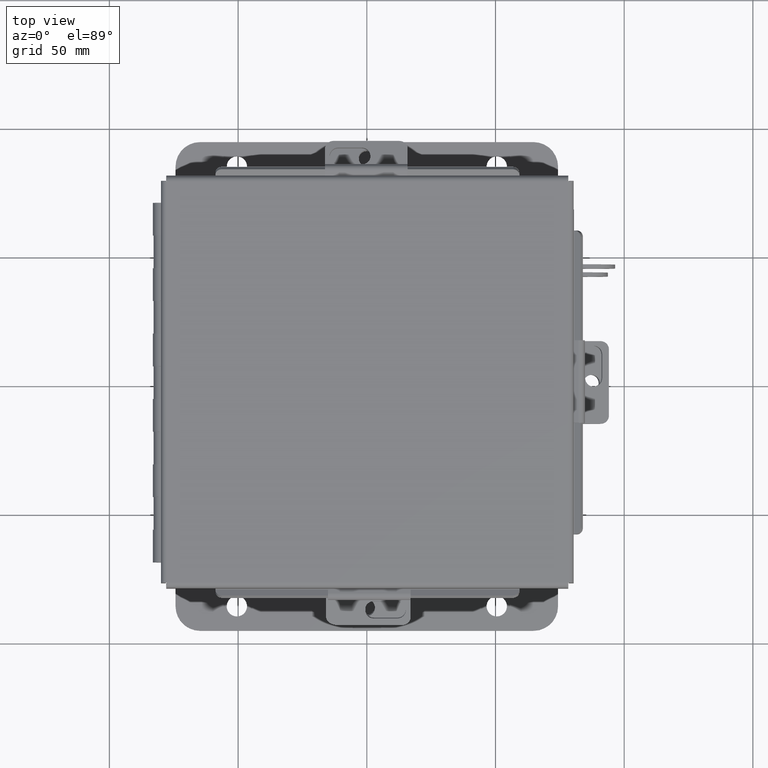
[diagram: clean part render]
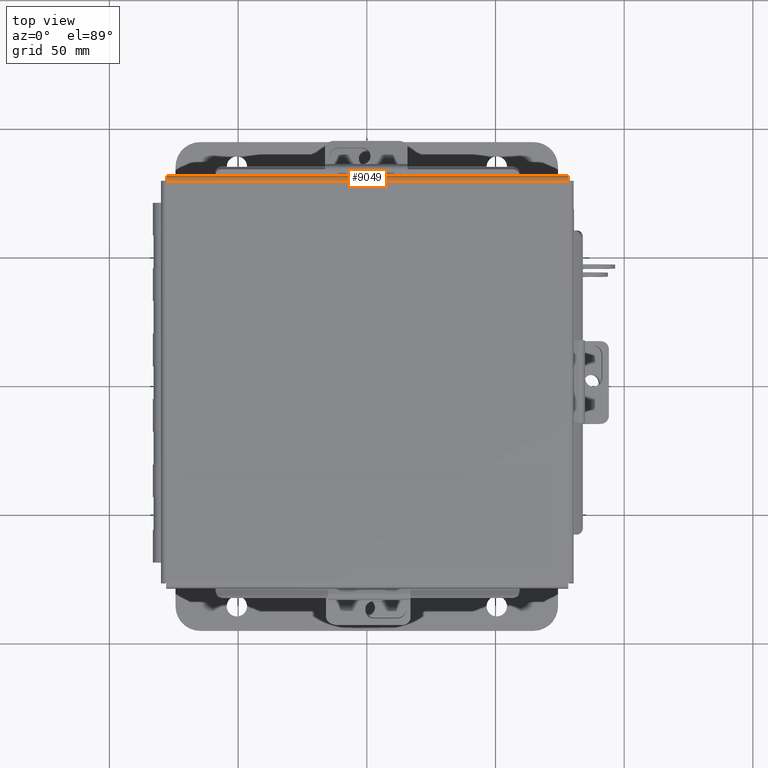
[diagram: same view with one face highlighted and labeled with its STEP entity id]
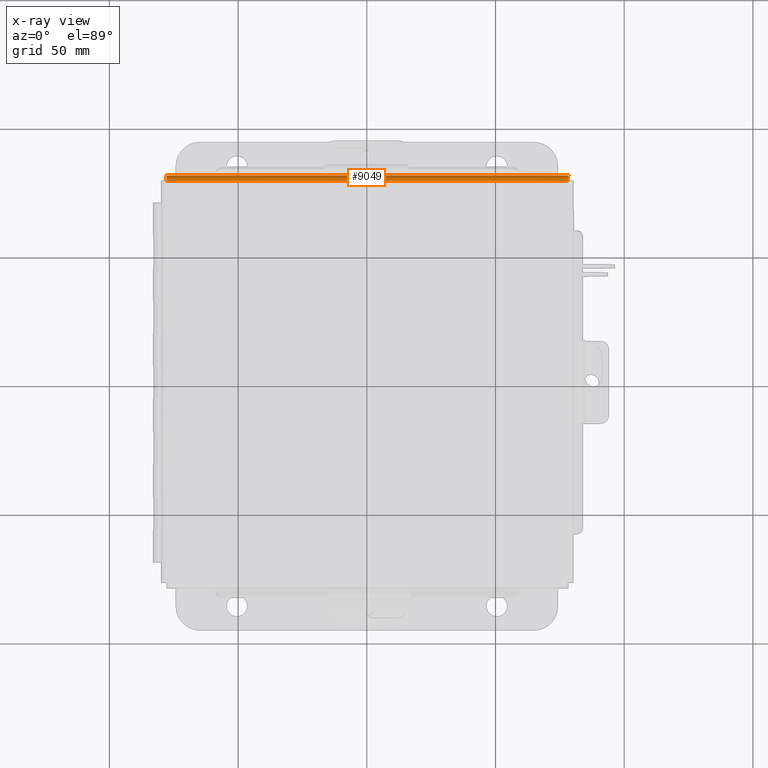
[diagram: x-ray of the same camera — body ghosted, the highlighted face saturated]
A machine part, top view. The second image highlights one B-rep face of the part: STEP entity #9049.
The next image is the same camera in x-ray: the body ghosted, the highlighted face saturated — about 0% of this face is hidden behind the body in this view.
In plain terms, the highlighted cylindrical surface (edge-blend (fillet) strip) has radius 2.2276 mm, axis along (1, -0, 0).
Its self-contained STEP definition (entity closure, byte-faithful):
#189 = ORIENTED_EDGE ( 'NONE', *, *, #6394, .F. ) ;
#439 = VECTOR ( 'NONE', #4567, 39.37007874015748100 ) ;
#584 = CARTESIAN_POINT ( 'NONE',  ( 3.069538155364688800, 3.091505289458309500, -0.07241740374381124000 ) ) ;
#603 = CARTESIAN_POINT ( 'NONE',  ( -3.069538155364689200, 3.091505289458308200, -0.07241740374381125400 ) ) ;
#1087 = LINE ( 'NONE', #9459, #12085 ) ;
#1262 = AXIS2_PLACEMENT_3D ( 'NONE', #4564, #4521, #12269 ) ;
#1533 = VERTEX_POINT ( 'NONE', #9192 ) ;
#1619 = CARTESIAN_POINT ( 'NONE',  ( -3.069044077682345300, 3.080029903154991800, -0.07469999999999994700 ) ) ;
#1660 = EDGE_LOOP ( 'NONE', ( #189, #4654, #4796, #4218 ) ) ;
#1679 = CARTESIAN_POINT ( 'NONE',  ( 3.071020388411722200, 3.122445747341799900, -0.05713078207832042500 ) ) ;
#2611 = FACE_OUTER_BOUND ( 'NONE', #1660, .T. ) ;
#2792 = CARTESIAN_POINT ( 'NONE',  ( 3.072502621458756500, 3.145181066258668800, -0.03116738457852795100 ) ) ;
#2855 = CARTESIAN_POINT ( 'NONE',  ( -3.074478932188136100, 3.156250000000000000, 0.01299999999999986400 ) ) ;
#3876 = CARTESIAN_POINT ( 'NONE',  ( 3.073984854505790800, 3.156250000000000000, 0.001520096845007165400 ) ) ;
#3917 = DIRECTION ( 'NONE',  ( 1.000000000000000000, 0.0000000000000000000, 0.0000000000000000000 ) ) ;
#3999 = EDGE_CURVE ( 'NONE', #6651, #5867, #12700, .T. ) ;
#4218 = ORIENTED_EDGE ( 'NONE', *, *, #14010, .F. ) ;
#4367 = CARTESIAN_POINT ( 'NONE',  ( -3.073984854505790800, 3.156249999999998700, 0.001520096845007165000 ) ) ;
#4521 = DIRECTION ( 'NONE',  ( -1.000000000000000000, -0.0000000000000000000, -0.0000000000000000000 ) ) ;
#4564 = CARTESIAN_POINT ( 'NONE',  ( -3.074478932188136100, 3.068549999999999700, 0.01300000000000015000 ) ) ;
#4567 = DIRECTION ( 'NONE',  ( 1.000000000000000000, -3.639204975723964100E-032, 1.189815042988946500E-046 ) ) ;
#4654 = ORIENTED_EDGE ( 'NONE', *, *, #3999, .F. ) ;
#4684 = CARTESIAN_POINT ( 'NONE',  ( -3.068550000000001000, 3.068549999999999700, -0.07469999999999994700 ) ) ;
#4796 = ORIENTED_EDGE ( 'NONE', *, *, #5379, .T. ) ;
#5021 = CARTESIAN_POINT ( 'NONE',  ( -3.071020388411724400, 3.122445747341799900, -0.05713078207832041800 ) ) ;
#5379 = EDGE_CURVE ( 'NONE', #6651, #1533, #6258, .T. ) ;
#5694 = CARTESIAN_POINT ( 'NONE',  ( 3.156249999999998200, 3.156250000000000000, 0.01299999999999986400 ) ) ;
#5867 = VERTEX_POINT ( 'NONE', #9668 ) ;
#6067 = CARTESIAN_POINT ( 'NONE',  ( 3.069044077682344400, 3.080029903154992700, -0.07469999999999994700 ) ) ;
#6258 = LINE ( 'NONE', #5694, #439 ) ;
#6394 = EDGE_CURVE ( 'NONE', #5867, #9366, #1087, .T. ) ;
#6402 = CARTESIAN_POINT ( 'NONE',  ( -3.073490776823448300, 3.153967403743811000, -0.009955289458308987100 ) ) ;
#6651 = VERTEX_POINT ( 'NONE', #14197 ) ;
#8008 = CARTESIAN_POINT ( 'NONE',  ( -3.072008543776413500, 3.138680782078319800, -0.04089574734180007700 ) ) ;
#8274 = CARTESIAN_POINT ( 'NONE',  ( 3.070526310729377400, 3.112717384578527600, -0.06363106625866839200 ) ) ;
#9049 = ADVANCED_FACE ( 'NONE', ( #2611 ), #11033, .T. ) ;
#9192 = CARTESIAN_POINT ( 'NONE',  ( 3.074478932188135200, 3.156250000000000000, 0.01299999999999985900 ) ) ;
#9366 = VERTEX_POINT ( 'NONE', #10767 ) ;
#9367 = CARTESIAN_POINT ( 'NONE',  ( 3.072008543776410400, 3.138680782078320700, -0.04089574734180008400 ) ) ;
#9459 = CARTESIAN_POINT ( 'NONE',  ( -3.074478932188136100, 3.068549999999999700, -0.07469999999999994700 ) ) ;
#9668 = CARTESIAN_POINT ( 'NONE',  ( -3.068550000000001000, 3.068549999999999700, -0.07469999999999994700 ) ) ;
#10479 = CARTESIAN_POINT ( 'NONE',  ( 3.073490776823446500, 3.153967403743811000, -0.009955289458308985400 ) ) ;
#10590 = B_SPLINE_CURVE_WITH_KNOTS ( 'NONE', 3,
 ( #13735, #6067, #584, #8274, #1679, #9367, #2792, #10479, #3876, #11589 ),
 .UNSPECIFIED., .F., .F.,
 ( 4, 2, 2, 2, 4 ),
 ( 0.0000000000000000000, 0.2500000000000000000, 0.5000000000000000000, 0.7500000000000000000, 1.000000000000000000 ),
 .UNSPECIFIED. ) ;
#10767 = CARTESIAN_POINT ( 'NONE',  ( 3.068549999999999200, 3.068550000000000100, -0.07469999999999994700 ) ) ;
#11033 = CYLINDRICAL_SURFACE ( 'NONE', #1262, 0.08770000000000026400 ) ;
#11589 = CARTESIAN_POINT ( 'NONE',  ( 3.074478932188135200, 3.156250000000000000, 0.01299999999999985900 ) ) ;
#12085 = VECTOR ( 'NONE', #3917, 39.37007874015748100 ) ;
#12269 = DIRECTION ( 'NONE',  ( 0.0000000000000000000, 1.000000000000000000, -3.358350761880586900E-015 ) ) ;
#12700 = B_SPLINE_CURVE_WITH_KNOTS ( 'NONE', 3,
 ( #2855, #4367, #6402, #12843, #8008, #5021, #13813, #603, #1619, #4684 ),
 .UNSPECIFIED., .F., .F.,
 ( 4, 2, 2, 2, 4 ),
 ( 0.0000000000000000000, 0.2500000000000000000, 0.5000000000000000000, 0.7500000000000000000, 1.000000000000000000 ),
 .UNSPECIFIED. ) ;
#12843 = CARTESIAN_POINT ( 'NONE',  ( -3.072502621458756500, 3.145181066258668300, -0.03116738457852794700 ) ) ;
#13735 = CARTESIAN_POINT ( 'NONE',  ( 3.068549999999999200, 3.068550000000000100, -0.07469999999999994700 ) ) ;
#13813 = CARTESIAN_POINT ( 'NONE',  ( -3.070526310729379200, 3.112717384578527200, -0.06363106625866842000 ) ) ;
#14010 = EDGE_CURVE ( 'NONE', #9366, #1533, #10590, .T. ) ;
#14197 = CARTESIAN_POINT ( 'NONE',  ( -3.074478932188136100, 3.156250000000000000, 0.01299999999999986400 ) ) ;